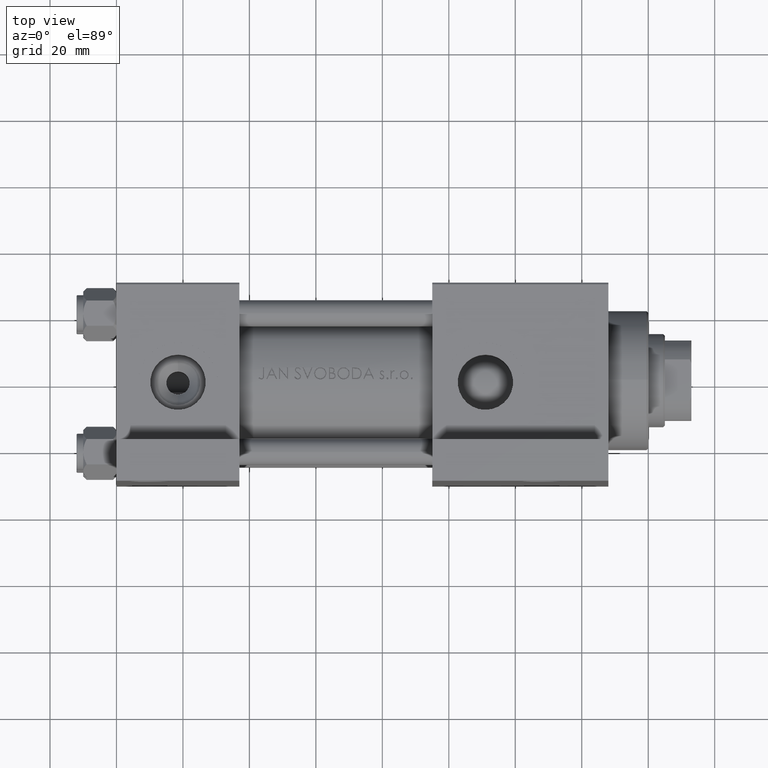
[diagram: clean part render]
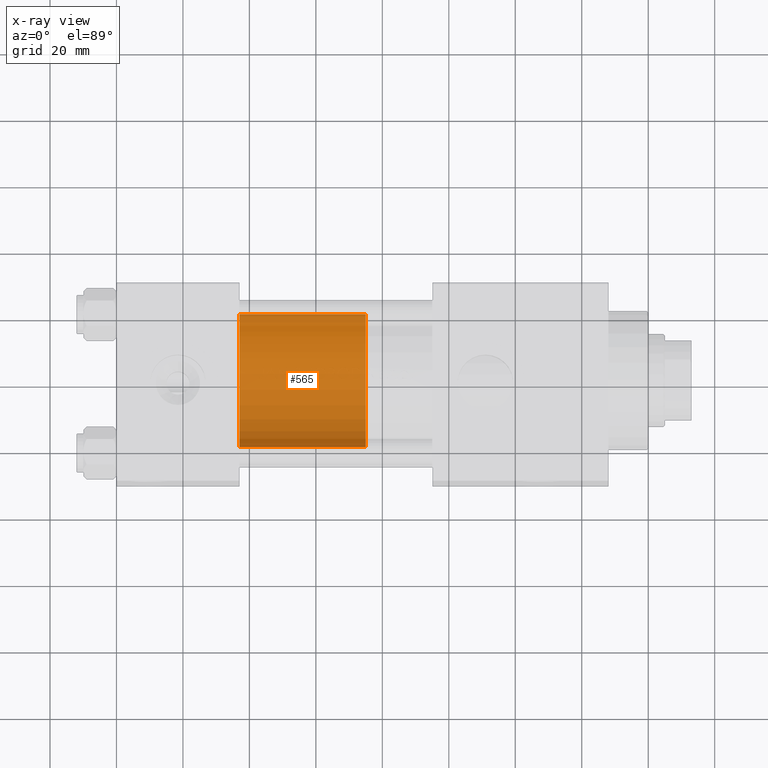
[diagram: x-ray — body ghosted, one internal face saturated and labeled with its STEP entity id]
A machine part, top view, then the same camera in x-ray: the body is ghosted and one INTERNAL B-rep face — a face not visible from any outside direction — is saturated and labeled: STEP entity #565.
In plain terms, the highlighted cylindrical surface (partial cylindrical patch) has radius 20 mm, axis along (-1, 0, 0).
Its self-contained STEP definition (entity closure, byte-faithful):
#314 = ORIENTED_EDGE ( 'NONE', *, *, #48671, .F. ) ;
#344 = VERTEX_POINT ( 'NONE', #19214 ) ;
#565 = ADVANCED_FACE ( 'NONE', ( #19633 ), #34847, .T. ) ;
#1472 = EDGE_CURVE ( 'NONE', #12129, #344, #39779, .T. ) ;
#1929 = LINE ( 'NONE', #36590, #2310 ) ;
#2132 = DIRECTION ( 'NONE',  ( 0.000000000000000000, 0.000000000000000000, 1.000000000000000000 ) ) ;
#2310 = VECTOR ( 'NONE', #48070, 1000.000000000000000 ) ;
#4361 = EDGE_LOOP ( 'NONE', ( #44561, #20969, #37710, #314 ) ) ;
#5187 = CARTESIAN_POINT ( 'NONE',  ( -20.00000000000000000, 0.000000000000000000, 38.00000000000000000 ) ) ;
#7446 = DIRECTION ( 'NONE',  ( -0.000000000000000000, -0.000000000000000000, -1.000000000000000000 ) ) ;
#9191 = EDGE_CURVE ( 'NONE', #12785, #15607, #16935, .T. ) ;
#9880 = DIRECTION ( 'NONE',  ( 1.000000000000000000, 0.000000000000000000, 0.000000000000000000 ) ) ;
#10121 = CARTESIAN_POINT ( 'NONE',  ( 0.000000000000000000, 0.000000000000000000, 38.00000000000000000 ) ) ;
#12129 = VERTEX_POINT ( 'NONE', #43307 ) ;
#12785 = VERTEX_POINT ( 'NONE', #20101 ) ;
#15607 = VERTEX_POINT ( 'NONE', #47776 ) ;
#16935 = CIRCLE ( 'NONE', #46396, 20.00000000000000000 ) ;
#19214 = CARTESIAN_POINT ( 'NONE',  ( -20.00000000000000000, 0.000000000000000000, 38.00000000000000000 ) ) ;
#19633 = FACE_OUTER_BOUND ( 'NONE', #4361, .T. ) ;
#20101 = CARTESIAN_POINT ( 'NONE',  ( 20.00000000000000000, 2.449293598294706513E-15, 0.000000000000000000 ) ) ;
#20969 = ORIENTED_EDGE ( 'NONE', *, *, #27656, .T. ) ;
#20995 = CARTESIAN_POINT ( 'NONE',  ( 0.000000000000000000, 0.000000000000000000, 0.000000000000000000 ) ) ;
#27656 = EDGE_CURVE ( 'NONE', #12129, #12785, #1929, .T. ) ;
#32460 = DIRECTION ( 'NONE',  ( 0.000000000000000000, 0.000000000000000000, 1.000000000000000000 ) ) ;
#32609 = LINE ( 'NONE', #5187, #41278 ) ;
#34847 = CYLINDRICAL_SURFACE ( 'NONE', #42895, 20.00000000000000000 ) ;
#36590 = CARTESIAN_POINT ( 'NONE',  ( 20.00000000000000000, 2.449293598294706513E-15, 38.00000000000000000 ) ) ;
#37710 = ORIENTED_EDGE ( 'NONE', *, *, #9191, .T. ) ;
#38086 = DIRECTION ( 'NONE',  ( -1.000000000000000000, 0.000000000000000000, 0.000000000000000000 ) ) ;
#39779 = CIRCLE ( 'NONE', #49328, 20.00000000000000000 ) ;
#41278 = VECTOR ( 'NONE', #47579, 1000.000000000000000 ) ;
#42895 = AXIS2_PLACEMENT_3D ( 'NONE', #45346, #7446, #38086 ) ;
#43307 = CARTESIAN_POINT ( 'NONE',  ( 20.00000000000000000, 2.449293598294706513E-15, 38.00000000000000000 ) ) ;
#44561 = ORIENTED_EDGE ( 'NONE', *, *, #1472, .F. ) ;
#45346 = CARTESIAN_POINT ( 'NONE',  ( 0.000000000000000000, 0.000000000000000000, 38.00000000000000000 ) ) ;
#46396 = AXIS2_PLACEMENT_3D ( 'NONE', #20995, #32460, #47680 ) ;
#47579 = DIRECTION ( 'NONE',  ( -0.000000000000000000, -0.000000000000000000, -1.000000000000000000 ) ) ;
#47680 = DIRECTION ( 'NONE',  ( 1.000000000000000000, 0.000000000000000000, 0.000000000000000000 ) ) ;
#47776 = CARTESIAN_POINT ( 'NONE',  ( -20.00000000000000000, 0.000000000000000000, 0.000000000000000000 ) ) ;
#48070 = DIRECTION ( 'NONE',  ( -0.000000000000000000, -0.000000000000000000, -1.000000000000000000 ) ) ;
#48671 = EDGE_CURVE ( 'NONE', #344, #15607, #32609, .T. ) ;
#49328 = AXIS2_PLACEMENT_3D ( 'NONE', #10121, #2132, #9880 ) ;